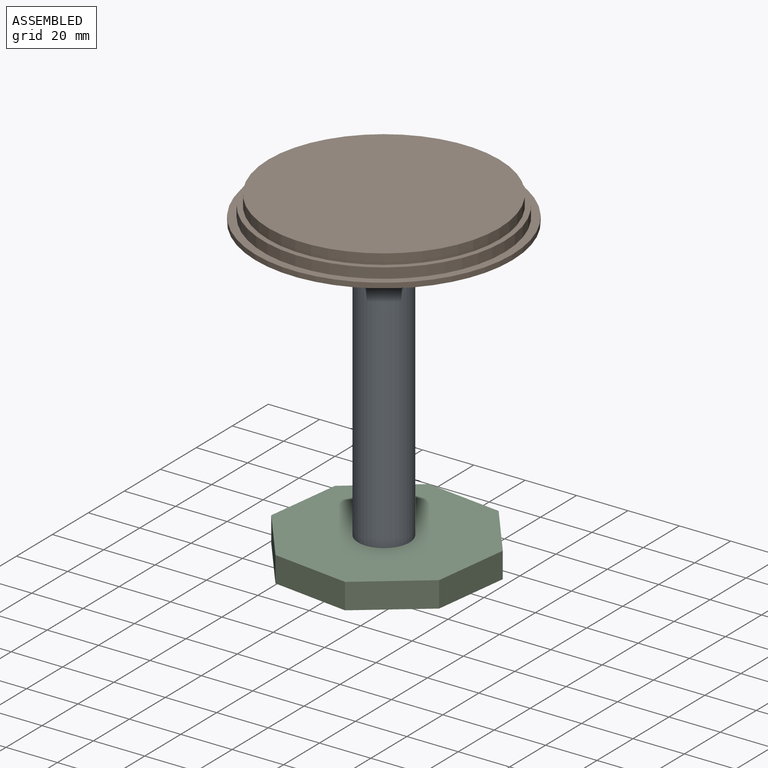
[diagram: assembled view]
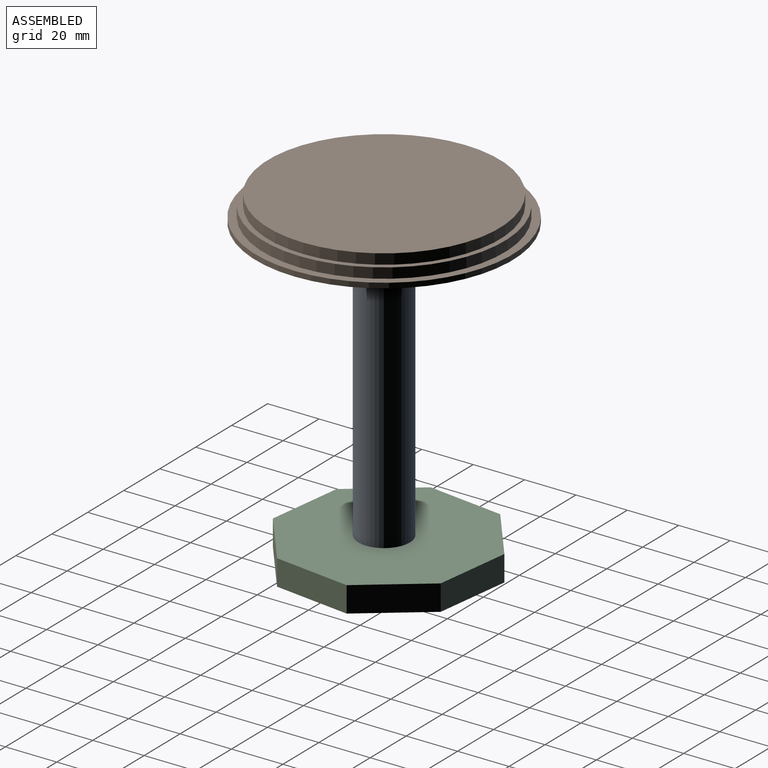
[diagram: assembled view, second angle]
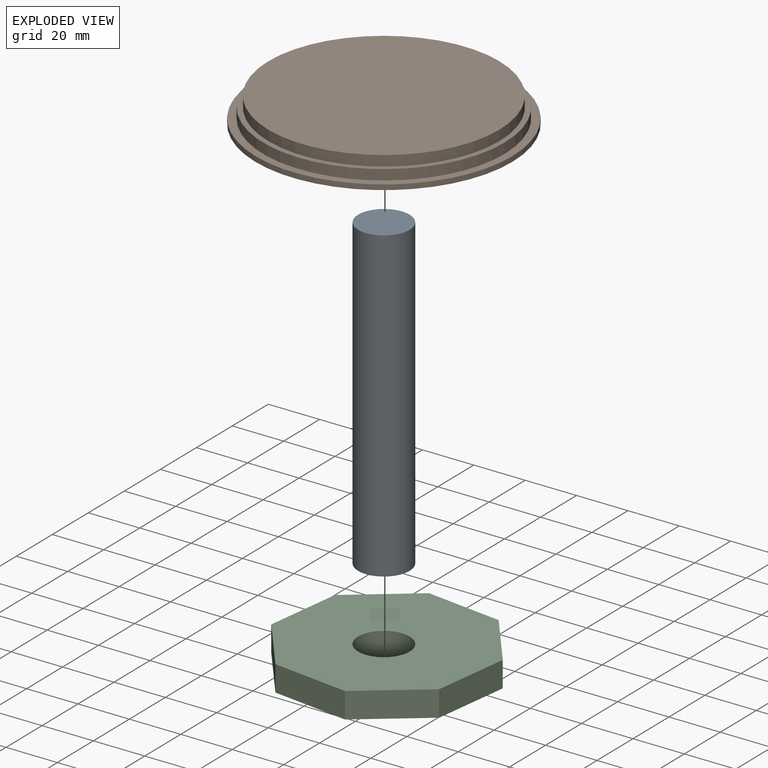
[diagram: exploded view]
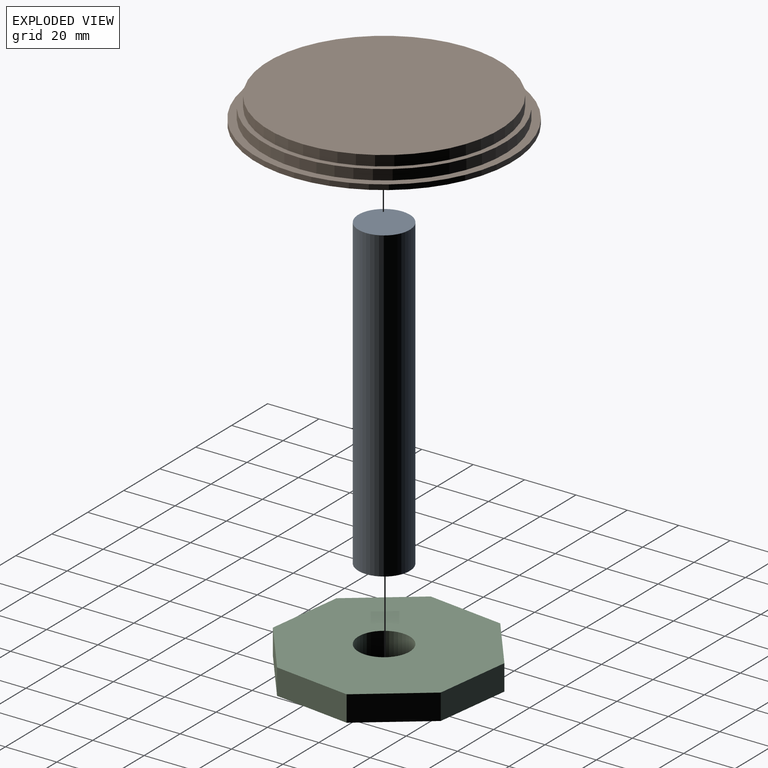
[diagram: exploded view, second angle]
ASSEMBLY  parts=3 mates=2
PART A: 3 faces, bbox 20x20x120 mm
  f0: cylinder r=10mm len=120mm, axis (0,0,-1), area 7539.8mm2, adj f1,f2
  f1: plane 20x20mm, normal (0,0,1), area 314.2mm2, adj f0
  f2: plane 20x20mm, normal (0,0,-1), area 314.2mm2, adj f0
PART B: 9 faces, bbox 100x100x10 mm
  f0: cylinder r=45mm len=90mm, axis (0,0,-1), area 1131mm2, adj f1,f3
  f1: plane 90x90mm, normal (0,0,1), area 6361.7mm2, adj f0
  f2: cylinder r=47mm len=94mm, axis (0,0,-1), area 1181.2mm2, adj f3,f5
  f3: plane 94x94mm, normal (0,0,1), area 578.1mm2, adj f0,f2
  f4: cylinder r=50mm len=100mm, axis (0,0,-1), area 628.3mm2, adj f5,f6
  f5: plane 100x100mm, normal (0,0,1), area 914.2mm2, adj f2,f4
  f6: plane 100x100mm, normal (0,0,-1), area 7539.8mm2, adj f4,f7
  f7: cylinder r=10mm len=20mm, axis (0,0,-1), area 314.2mm2, adj f6,f8
  f8: plane 20x20mm, normal (0,0,-1), area 314.2mm2, adj f7
PART C: 11 faces, bbox 75.9x75.9x10 mm
  f0: plane 23.84x18.31mm, normal (-0.79,-0.61,0), area 300.5mm2, adj f1,f7,f8,f9
  f1: plane 29.8x10mm, normal (-0.13,-0.99,0), area 300.5mm2, adj f0,f2,f8,f9
  f2: plane 23.84x18.31mm, normal (0.61,-0.79,0), area 300.5mm2, adj f1,f3,f8,f9
  f3: plane 29.8x10mm, normal (0.99,-0.13,0), area 300.5mm2, adj f2,f4,f8,f9
  f4: plane 23.84x18.31mm, normal (0.79,0.61,0), area 300.5mm2, adj f3,f5,f8,f9
  f5: plane 29.8x10mm, normal (0.13,0.99,0), area 300.5mm2, adj f4,f6,f8,f9
  f6: plane 23.84x18.31mm, normal (-0.61,0.79,0), area 300.5mm2, adj f5,f7,f8,f9
  f7: plane 29.8x10mm, normal (-0.99,0.13,0), area 300.5mm2, adj f0,f6,f8,f9
  f8: plane 75.85x75.85mm, normal (0,0,1), area 4047.2mm2, adj f0,f1,f2,f3,f4,f5,f6,f7
  f9: plane 75.85x75.85mm, normal (0,0,-1), area 4047.2mm2, adj f0,f1,f2,f3,f4,f5,f6,f7
  f10: cylinder r=10mm len=20mm, axis (0,0,1), area 628.3mm2, adj f8,f9
PLACE A t=(-110.15,-49.71,-107.88)mm
PLACE B t=(-110.15,-49.71,12.12)mm
PLACE C t=(-110.15,-47.94,-107.88)mm fixed
MATE slider A.f0 <-> C.f10  axis (0,0,-1) through (-110.15,-49.71,-47.88)mm
MATE slider B.f4 <-> A.f0  axis (0,0,-1) through (-110.15,-49.71,12.12)mm
